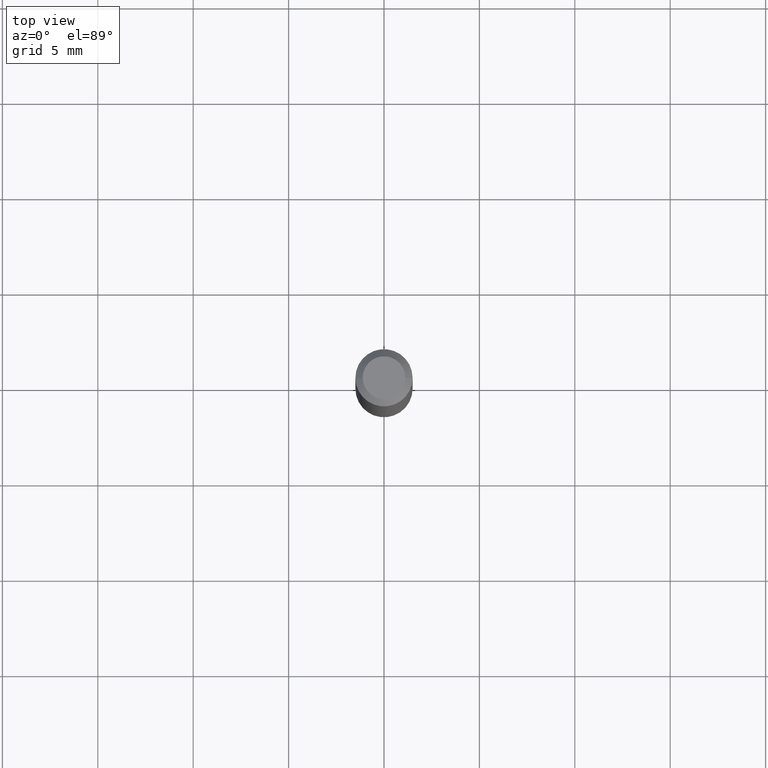
[diagram: clean part render]
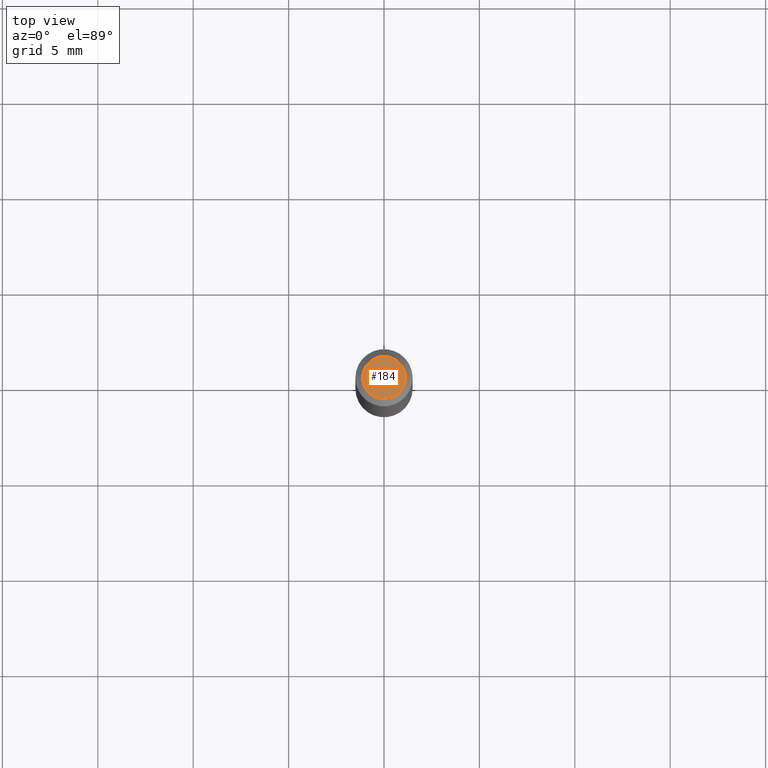
[diagram: same view with one face highlighted and labeled with its STEP entity id]
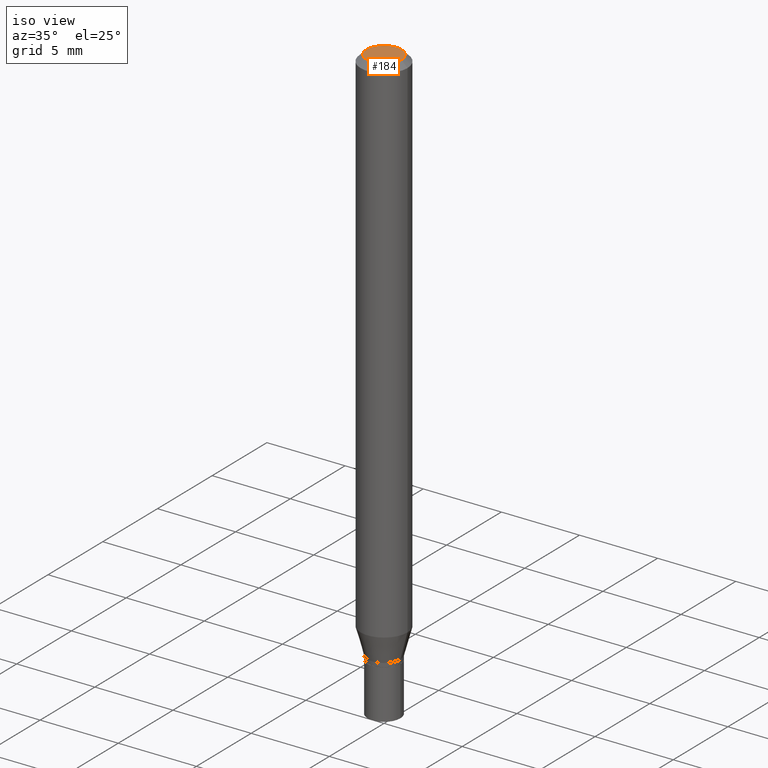
[diagram: same view with one face highlighted and labeled with its STEP entity id]
A machine part, top view. The second image highlights one B-rep face of the part: STEP entity #184.
A second angle (iso view) of the same face is appended — the face is thin or edge-on in the first view.
In plain terms, the highlighted planar face has unit normal (0, -0, -1).
Its self-contained STEP definition (entity closure, byte-faithful):
#1 = VERTEX_POINT ( 'NONE', #215 ) ;
#15 = EDGE_CURVE ( 'NONE', #1, #287, #365, .T. ) ;
#109 = EDGE_CURVE ( 'NONE', #287, #1, #328, .T. ) ;
#111 = DIRECTION ( 'NONE',  ( -2.445468806185136597E-29, 3.491481338843145583E-15, 1.000000000000000000 ) ) ;
#116 = CARTESIAN_POINT ( 'NONE',  ( 0.04404999999999999888, -3.798447818264464023E-16, -2.090942999999162343E-16 ) ) ;
#135 = AXIS2_PLACEMENT_3D ( 'NONE', #407, #111, #363 ) ;
#136 = EDGE_LOOP ( 'NONE', ( #427, #199 ) ) ;
#148 = CARTESIAN_POINT ( 'NONE',  ( 5.113335882009178277E-45, -7.300488465081862281E-31, -2.090942999999186255E-16 ) ) ;
#161 = CARTESIAN_POINT ( 'NONE',  ( 3.075995059520799729E-16, 0.04404999999999999888, -2.583469029759998662E-16 ) ) ;
#184 = ADVANCED_FACE ( 'NONE', ( #452 ), #416, .F. ) ;
#199 = ORIENTED_EDGE ( 'NONE', *, *, #109, .T. ) ;
#202 = DIRECTION ( 'NONE',  ( -1.000000000000000000, 6.982962677686265922E-15, -4.876176775795935793E-29 ) ) ;
#215 = CARTESIAN_POINT ( 'NONE',  ( -0.04404999999999999888, 3.337856159934030687E-16, -2.090942999999208688E-16 ) ) ;
#239 = AXIS2_PLACEMENT_3D ( 'NONE', #148, #370, #400 ) ;
#277 = AXIS2_PLACEMENT_3D ( 'NONE', #161, #302, #202 ) ;
#287 = VERTEX_POINT ( 'NONE', #116 ) ;
#302 = DIRECTION ( 'NONE',  ( 2.438088387897960049E-29, -3.491481338843145188E-15, -1.000000000000000000 ) ) ;
#328 = CIRCLE ( 'NONE', #239, 0.04404999999999999888 ) ;
#363 = DIRECTION ( 'NONE',  ( 1.000000000000000000, -6.982962677686265922E-15, 4.888540261209747396E-29 ) ) ;
#365 = CIRCLE ( 'NONE', #135, 0.04404999999999999888 ) ;
#370 = DIRECTION ( 'NONE',  ( -2.445468806185136597E-29, 3.491481338843145583E-15, 1.000000000000000000 ) ) ;
#400 = DIRECTION ( 'NONE',  ( 1.000000000000000000, -6.982962677686265922E-15, 4.888540261209747396E-29 ) ) ;
#407 = CARTESIAN_POINT ( 'NONE',  ( 5.113335882009178277E-45, -7.300488465081862281E-31, -2.090942999999186255E-16 ) ) ;
#416 = PLANE ( 'NONE',  #277 ) ;
#427 = ORIENTED_EDGE ( 'NONE', *, *, #15, .T. ) ;
#452 = FACE_OUTER_BOUND ( 'NONE', #136, .T. ) ;